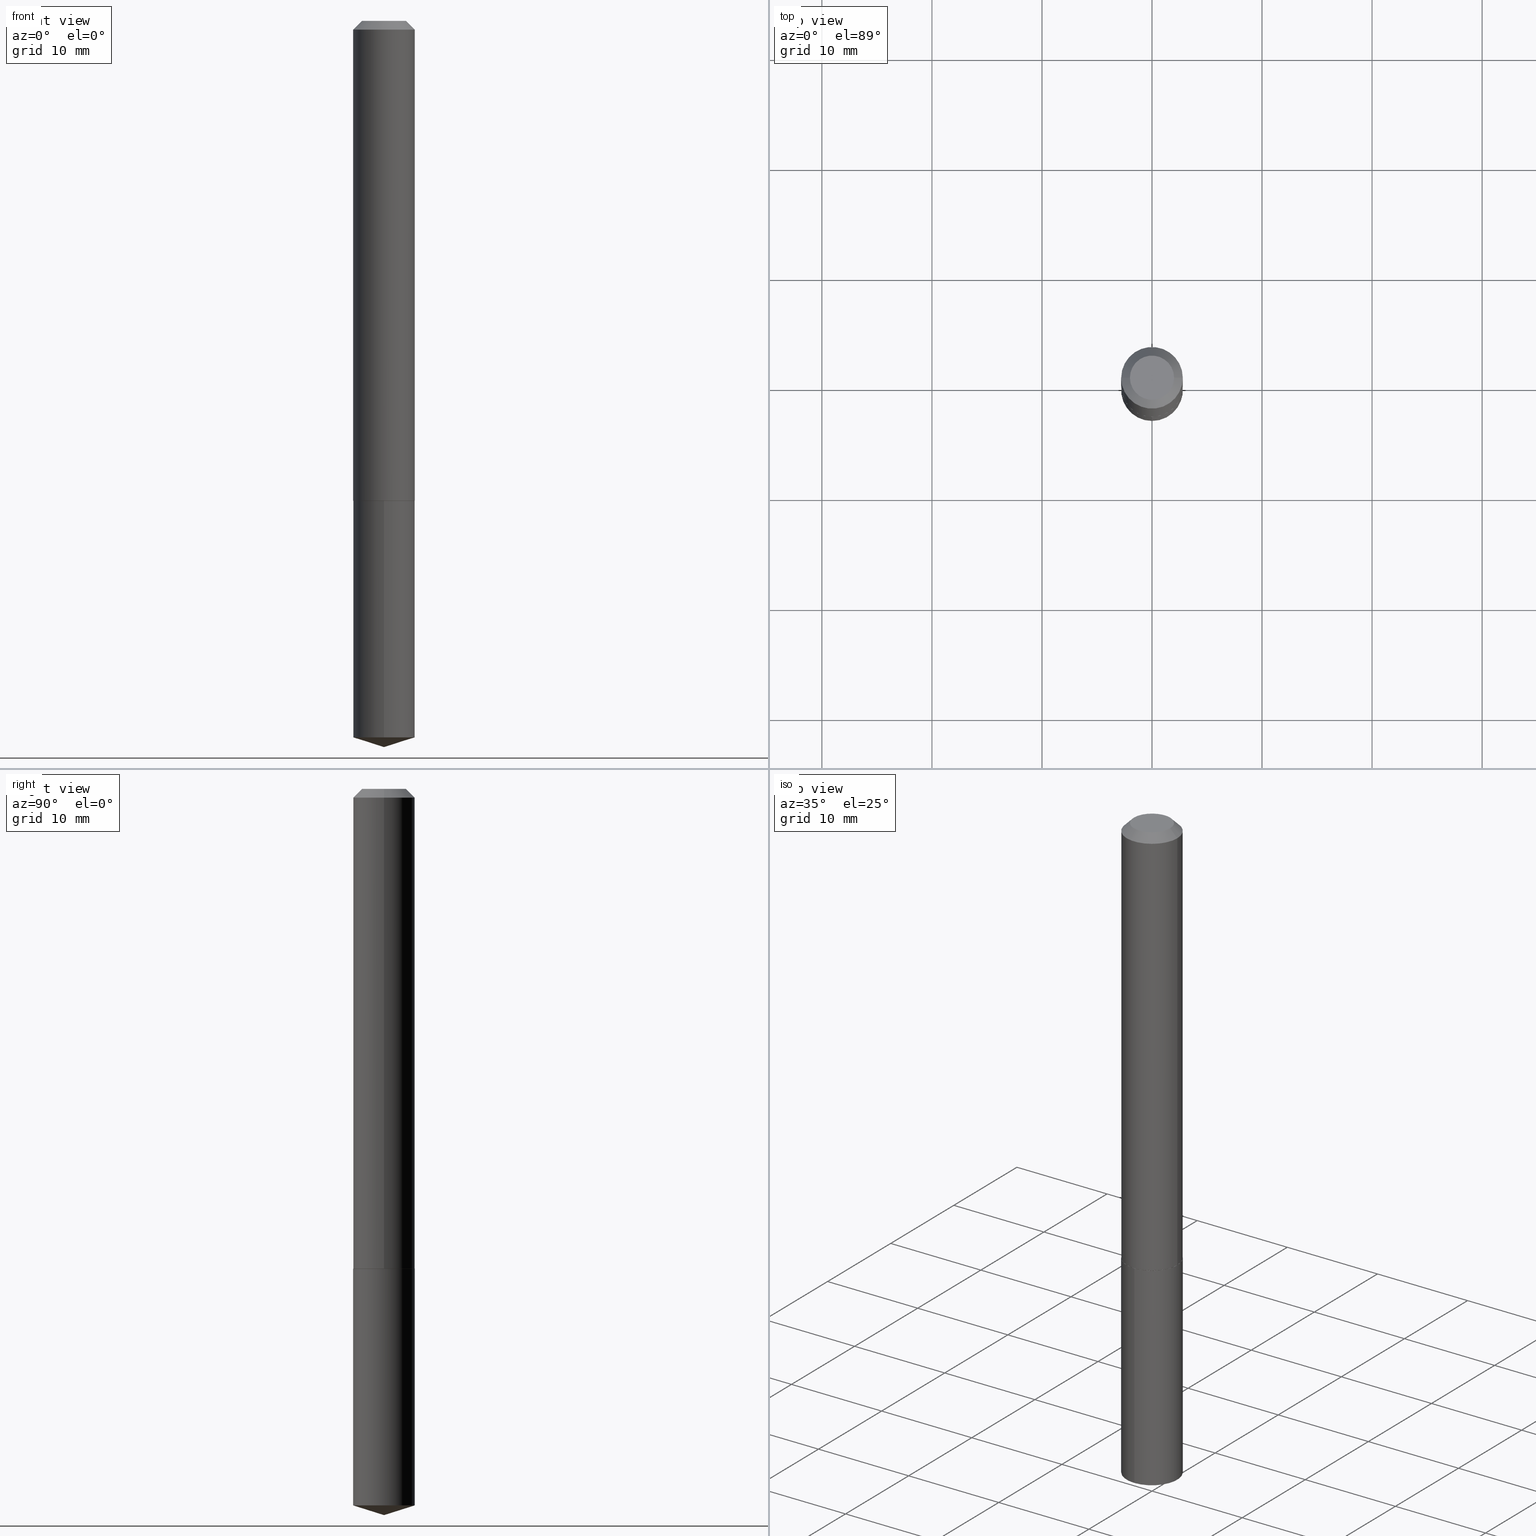
[diagram: canonical four-view strip — front | top / right | iso, engineering-drawing reading convention]
A machine part, canonical four-view strip (front | top / right | iso — engineering-drawing reading convention). The complete STEP part file that produces these views, byte-faithful:
ISO-10303-21;
HEADER;
FILE_DESCRIPTION (( 'STEP AP203' ),
    '1' );
FILE_NAME ('62123.STEP',
    '2024-04-23T06:21:01',
    ( '' ),
    ( '' ),
    'SwSTEP 2.0',
    'SolidWorks 2023',
    '' );
FILE_SCHEMA (( 'CONFIG_CONTROL_DESIGN' ));
ENDSEC;

DATA;
#1 = AXIS2_PLACEMENT_3D ( 'NONE', #357, #51, #261 ) ;
#2 = ORIENTED_EDGE ( 'NONE', *, *, #131, .F. ) ;
#3 = FACE_OUTER_BOUND ( 'NONE', #296, .T. ) ;
#4 = CC_DESIGN_DATE_AND_TIME_ASSIGNMENT ( #192, #315, ( #234 ) ) ;
#5 = APPROVAL_DATE_TIME ( #161, #202 ) ;
#6 = CARTESIAN_POINT ( 'NONE',  ( 6.354085478597947084E-29, -9.072581119117144930E-15, -2.598399999999999821 ) ) ;
#7 = APPROVAL_ROLE ( '' ) ;
#8 = LOCAL_TIME ( 2, 21, 1.000000000000000000, #282 ) ;
#9 = PERSON_AND_ORGANIZATION_ROLE ( 'design_supplier' ) ;
#10 = CC_DESIGN_PERSON_AND_ORGANIZATION_ASSIGNMENT ( #70, #312, ( #281 ) ) ;
#11 = AXIS2_PLACEMENT_3D ( 'NONE', #168, #157, #288 ) ;
#12 = DIRECTION ( 'NONE',  ( 1.000000000000000000, -6.982962677686265133E-15, 0.000000000000000000 ) ) ;
#13 = CIRCLE ( 'NONE', #72, 0.1102500000000000008 ) ;
#14 = FACE_OUTER_BOUND ( 'NONE', #241, .T. ) ;
#15 = LINE ( 'NONE', #204, #364 ) ;
#16 = EDGE_CURVE ( 'NONE', #237, #33, #193, .T. ) ;
#17 = DIRECTION ( 'NONE',  ( -2.445383881849579817E-29, 3.491602955325256066E-15, 1.000000000000000000 ) ) ;
#18 = LINE ( 'NONE', #295, #43 ) ;
#19 = CARTESIAN_POINT ( 'NONE',  ( 4.197647205816786480E-29, -5.993127718124259199E-15, -1.716499999999999915 ) ) ;
#20 = DIRECTION ( 'NONE',  ( 0.7071067811865452413, -7.319954787623248157E-15, -0.7071067811865497932 ) ) ;
#21 = AXIS2_PLACEMENT_3D ( 'NONE', #19, #17, #133 ) ;
#22 = DIRECTION ( 'NONE',  ( 1.000000000000000000, -6.982962677686266711E-15, 4.876184424155355806E-29 ) ) ;
#23 = ORIENTED_EDGE ( 'NONE', *, *, #81, .T. ) ;
#24 = DIRECTION ( 'NONE',  ( -2.445383881849579817E-29, 3.491602955325256066E-15, 1.000000000000000000 ) ) ;
#25 = EDGE_CURVE ( 'NONE', #80, #269, #97, .T. ) ;
#26 = ORIENTED_EDGE ( 'NONE', *, *, #131, .T. ) ;
#27 = VERTEX_POINT ( 'NONE', #6 ) ;
#28 = DATE_AND_TIME ( #301, #117 ) ;
#29 = ORIENTED_EDGE ( 'NONE', *, *, #264, .F. ) ;
#30 = APPLICATION_PROTOCOL_DEFINITION ( 'international standard', 'config_control_design', 1994, #383 ) ;
#31 = ADVANCED_FACE ( 'NONE', ( #69 ), #165, .T. ) ;
#32 = DIMENSIONAL_EXPONENTS ( 1.000000000000000000, 0.000000000000000000, 0.000000000000000000, 0.000000000000000000, 0.000000000000000000, 0.000000000000000000, 0.000000000000000000 ) ;
#33 = VERTEX_POINT ( 'NONE', #130 ) ;
#34 = AXIS2_PLACEMENT_3D ( 'NONE', #335, #150, #61 ) ;
#35 = DIRECTION ( 'NONE',  ( -2.445383881849579817E-29, 3.491602955325256066E-15, 1.000000000000000000 ) ) ;
#36 = FACE_OUTER_BOUND ( 'NONE', #272, .T. ) ;
#37 = APPROVAL ( #56, 'UNSPECIFIED' ) ;
#38 = PERSON_AND_ORGANIZATION_ROLE ( 'classification_officer' ) ;
#39 = CARTESIAN_POINT ( 'NONE',  ( 0.1102500000000002089, -6.761253612669749957E-15, -1.715999999999999970 ) ) ;
#40 = VECTOR ( 'NONE', #35, 39.37007874015748143 ) ;
#41 = DATE_AND_TIME ( #68, #8 ) ;
#42 = DIRECTION ( 'NONE',  ( 2.438088387897960049E-29, -3.491481338843145188E-15, -1.000000000000000000 ) ) ;
#43 = VECTOR ( 'NONE', #384, 39.37007874015748143 ) ;
#44 = ADVANCED_FACE ( 'NONE', ( #3 ), #273, .T. ) ;
#45 = DIRECTION ( 'NONE',  ( -6.659769872151619467E-15, -0.9537169507482249342, 0.3007057995042790588 ) ) ;
#46 = CARTESIAN_POINT ( 'NONE',  ( 7.833733661755731749E-16, 0.1102499999999940195, -1.716500000000000137 ) ) ;
#47 = FACE_OUTER_BOUND ( 'NONE', #148, .T. ) ;
#48 = DIRECTION ( 'NONE',  ( 1.000000000000000000, -6.982962677686265133E-15, 0.000000000000000000 ) ) ;
#49 = CONICAL_SURFACE ( 'NONE', #98, 0.1102500000000000008, 0.7853981633974450594 ) ;
#50 = ORIENTED_EDGE ( 'NONE', *, *, #86, .T. ) ;
#51 = DIRECTION ( 'NONE',  ( 2.445383881849579257E-29, -3.491602955325256066E-15, -1.000000000000000000 ) ) ;
#52 = EDGE_CURVE ( 'NONE', #176, #142, #334, .T. ) ;
#53 = EDGE_LOOP ( 'NONE', ( #84, #215 ) ) ;
#54 = APPLICATION_PROTOCOL_DEFINITION ( 'international standard', 'config_control_design', 1994, #304 ) ;
#55 = ORIENTED_EDGE ( 'NONE', *, *, #25, .T. ) ;
#56 = APPROVAL_STATUS ( 'not_yet_approved' ) ;
#57 = VECTOR ( 'NONE', #325, 39.37007874015748854 ) ;
#58 = LOCAL_TIME ( 2, 21, 1.000000000000000000, #252 ) ;
#59 = ORIENTED_EDGE ( 'NONE', *, *, #121, .T. ) ;
#60 = APPROVAL_PERSON_ORGANIZATION ( #310, #210, #156 ) ;
#61 = DIRECTION ( 'NONE',  ( 1.000000000000000000, 0.000000000000000000, 0.000000000000000000 ) ) ;
#62 = DIRECTION ( 'NONE',  ( -2.445468806185136597E-29, 3.491481338843145583E-15, 1.000000000000000000 ) ) ;
#63 = PERSON_AND_ORGANIZATION ( #260, #126 ) ;
#64 = LINE ( 'NONE', #309, #316 ) ;
#65 = AXIS2_PLACEMENT_3D ( 'NONE', #201, #263, #48 ) ;
#66 = PERSON_AND_ORGANIZATION ( #260, #126 ) ;
#67 = DIRECTION ( 'NONE',  ( 0.7071067811864026886, -2.468850131080739687E-15, 0.7071067811866923458 ) ) ;
#68 = CALENDAR_DATE ( 2024, 23, 4 ) ;
#69 = FACE_OUTER_BOUND ( 'NONE', #298, .T. ) ;
#70 = PERSON_AND_ORGANIZATION ( #260, #126 ) ;
#71 = AXIS2_PLACEMENT_3D ( 'NONE', #336, #163, #89 ) ;
#72 = AXIS2_PLACEMENT_3D ( 'NONE', #162, #255, #314 ) ;
#73 = CARTESIAN_POINT ( 'NONE',  ( -5.989671091818699506E-48, 8.551662891794013634E-34, 2.449293598294725547E-19 ) ) ;
#74 = DIRECTION ( 'NONE',  ( -2.445468806185136877E-29, 3.491481338843145188E-15, 1.000000000000000000 ) ) ;
#75 = CARTESIAN_POINT ( 'NONE',  ( -0.1102500000000001118, 7.833733661755112493E-16, -5.423125937006039074E-30 ) ) ;
#76 = VECTOR ( 'NONE', #322, 39.37007874015748143 ) ;
#77 = CYLINDRICAL_SURFACE ( 'NONE', #110, 0.1102500000000000008 ) ;
#78 = LINE ( 'NONE', #132, #244 ) ;
#79 = FACE_OUTER_BOUND ( 'NONE', #248, .T. ) ;
#80 = VERTEX_POINT ( 'NONE', #99 ) ;
#81 = EDGE_CURVE ( 'NONE', #269, #356, #188, .T. ) ;
#82 = CARTESIAN_POINT ( 'NONE',  ( 7.642090019328603538E-31, -1.091087918388490390E-16, -0.03125000000000021511 ) ) ;
#83 = VERTEX_POINT ( 'NONE', #246 ) ;
#84 = ORIENTED_EDGE ( 'NONE', *, *, #86, .F. ) ;
#85 = FACE_OUTER_BOUND ( 'NONE', #146, .T. ) ;
#86 = EDGE_CURVE ( 'NONE', #237, #305, #319, .T. ) ;
#87 = ORIENTED_EDGE ( 'NONE', *, *, #52, .F. ) ;
#88 =( LENGTH_UNIT ( ) NAMED_UNIT ( * ) SI_UNIT ( $, .METRE. ) );
#89 = DIRECTION ( 'NONE',  ( -6.982962677686266711E-15, -1.000000000000000000, 4.955733321839933614E-15 ) ) ;
#90 = PERSON_AND_ORGANIZATION ( #260, #126 ) ;
#91 = SHAPE_DEFINITION_REPRESENTATION ( #197, #229 ) ;
#92 = EDGE_CURVE ( 'NONE', #142, #95, #64, .T. ) ;
#93 = DIRECTION ( 'NONE',  ( 1.000000000000000000, -6.982962677686266711E-15, 4.876184424155355806E-29 ) ) ;
#94 = CONICAL_SURFACE ( 'NONE', #65, 0.1102500000000002089, 0.7853981633972434429 ) ;
#95 = VERTEX_POINT ( 'NONE', #198 ) ;
#96 = ADVANCED_FACE ( 'NONE', ( #318 ), #155, .F. ) ;
#97 = CIRCLE ( 'NONE', #71, 0.1102500000000000008 ) ;
#98 = AXIS2_PLACEMENT_3D ( 'NONE', #82, #323, #231 ) ;
#99 = CARTESIAN_POINT ( 'NONE',  ( -7.698716352148479695E-16, -0.1102500000000089381, -2.563638308526090981 ) ) ;
#100 = LINE ( 'NONE', #230, #200 ) ;
#101 = CYLINDRICAL_SURFACE ( 'NONE', #224, 0.1102500000000001118 ) ;
#102 = CC_DESIGN_APPROVAL ( #210, ( #234 ) ) ;
#103 = CARTESIAN_POINT ( 'NONE',  ( -0.1097500000000005138, -5.210657838453436365E-15, -1.716499999999999915 ) ) ;
#104 = CARTESIAN_POINT ( 'NONE',  ( 4.197647205816786480E-29, -5.993127718124259199E-15, -1.716499999999999915 ) ) ;
#105 = CARTESIAN_POINT ( 'NONE',  ( 0.1097500000000005138, -6.759507872000330031E-15, -1.716499999999999915 ) ) ;
#106 = PRODUCT_RELATED_PRODUCT_CATEGORY ( 'detail', '', ( #129 ) ) ;
#107 = FACE_OUTER_BOUND ( 'NONE', #53, .T. ) ;
#108 = CARTESIAN_POINT ( 'NONE',  ( 6.354379580349561740E-29, -9.072163609734060418E-15, -2.598399999999999821 ) ) ;
#109 = ORIENTED_EDGE ( 'NONE', *, *, #16, .T. ) ;
#110 = AXIS2_PLACEMENT_3D ( 'NONE', #262, #294, #382 ) ;
#111 = ORIENTED_EDGE ( 'NONE', *, *, #81, .F. ) ;
#112 = LENGTH_MEASURE_WITH_UNIT ( LENGTH_MEASURE( 0.02539999999999999897 ), #88 );
#113 = ADVANCED_FACE ( 'NONE', ( #36 ), #187, .T. ) ;
#114 = ORIENTED_EDGE ( 'NONE', *, *, #277, .T. ) ;
#115 = ORIENTED_EDGE ( 'NONE', *, *, #375, .T. ) ;
#116 =( CONVERSION_BASED_UNIT ( 'INCH', #112 ) LENGTH_UNIT ( ) NAMED_UNIT ( #32 ) );
#117 = LOCAL_TIME ( 2, 21, 1.000000000000000000, #387 ) ;
#118 = DIRECTION ( 'NONE',  ( 1.000000000000000000, -6.982962677686267499E-15, 0.000000000000000000 ) ) ;
#119 = MECHANICAL_CONTEXT ( 'NONE', #383, 'mechanical' ) ;
#120 = ORIENTED_EDGE ( 'NONE', *, *, #185, .F. ) ;
#121 = EDGE_CURVE ( 'NONE', #305, #237, #240, .T. ) ;
#122 = DIRECTION ( 'NONE',  ( -1.000000000000000000, 6.982962677686265922E-15, -4.876176775795935793E-29 ) ) ;
#123 = COORDINATED_UNIVERSAL_TIME_OFFSET ( 5, 0, .BEHIND. ) ;
#124 = ORIENTED_EDGE ( 'NONE', *, *, #300, .F. ) ;
#125 = CIRCLE ( 'NONE', #348, 0.1102500000000002089 ) ;
#126 = ORGANIZATION ( 'UNSPECIFIED', 'UNSPECIFIED', '' ) ;
#127 = CALENDAR_DATE ( 2024, 23, 4 ) ;
#128 = APPROVAL_STATUS ( 'not_yet_approved' ) ;
#129 = PRODUCT ( '62123', '62123', '', ( #119 ) ) ;
#130 = CARTESIAN_POINT ( 'NONE',  ( 0.1102500000000002089, -6.761253612669749957E-15, -1.715999999999999970 ) ) ;
#131 = EDGE_CURVE ( 'NONE', #83, #33, #285, .T. ) ;
#132 = CARTESIAN_POINT ( 'NONE',  ( 0.1102500000000000008, -8.654786960931604025E-16, -0.03125000000000021511 ) ) ;
#133 = DIRECTION ( 'NONE',  ( -6.982962677686266711E-15, -1.000000000000000000, 2.477866660919966807E-15 ) ) ;
#134 = FACE_OUTER_BOUND ( 'NONE', #303, .T. ) ;
#135 = AXIS2_PLACEMENT_3D ( 'NONE', #276, #42, #122 ) ;
#136 = CIRCLE ( 'NONE', #286, 0.1102500000000000008 ) ;
#137 = DIRECTION ( 'NONE',  ( 1.000000000000000000, -6.982962677686265133E-15, 0.000000000000000000 ) ) ;
#138 = CC_DESIGN_PERSON_AND_ORGANIZATION_ASSIGNMENT ( #343, #38, ( #234 ) ) ;
#139 = CARTESIAN_POINT ( 'NONE',  ( -0.07900000000000000078, 6.062084474566384135E-16, 2.449293598254241055E-19 ) ) ;
#140 = ORIENTED_EDGE ( 'NONE', *, *, #158, .F. ) ;
#141 = DIRECTION ( 'NONE',  ( -6.982962677686266711E-15, -1.000000000000000000, 4.955733321839933614E-15 ) ) ;
#142 = VERTEX_POINT ( 'NONE', #139 ) ;
#143 =( NAMED_UNIT ( * ) SI_UNIT ( $, .STERADIAN. ) SOLID_ANGLE_UNIT ( ) );
#144 = AXIS2_PLACEMENT_3D ( 'NONE', #245, #62, #186 ) ;
#145 = AXIS2_PLACEMENT_3D ( 'NONE', #194, #342, #160 ) ;
#146 = EDGE_LOOP ( 'NONE', ( #124, #26, #313, #242 ) ) ;
#147 = APPROVAL_DATE_TIME ( #28, #37 ) ;
#148 = EDGE_LOOP ( 'NONE', ( #183, #59, #109, #2 ) ) ;
#149 = ORIENTED_EDGE ( 'NONE', *, *, #185, .T. ) ;
#150 = DIRECTION ( 'NONE',  ( 0.000000000000000000, 0.000000000000000000, 1.000000000000000000 ) ) ;
#151 = EDGE_CURVE ( 'NONE', #33, #83, #125, .T. ) ;
#152 = AXIS2_PLACEMENT_3D ( 'NONE', #73, #376, #93 ) ;
#153 = CIRCLE ( 'NONE', #320, 0.07900000000000000078 ) ;
#154 = DIRECTION ( 'NONE',  ( 1.000000000000000000, -6.982962677686267499E-15, 0.000000000000000000 ) ) ;
#155 = PLANE ( 'NONE',  #135 ) ;
#156 = APPROVAL_ROLE ( '' ) ;
#157 = DIRECTION ( 'NONE',  ( -2.445383881849579817E-29, 3.491602955325256066E-15, 1.000000000000000000 ) ) ;
#158 = EDGE_CURVE ( 'NONE', #27, #269, #235, .T. ) ;
#159 = PERSON_AND_ORGANIZATION_ROLE ( 'creator' ) ;
#160 = DIRECTION ( 'NONE',  ( 1.000000000000000000, -6.982962677686266711E-15, 0.000000000000000000 ) ) ;
#161 = DATE_AND_TIME ( #127, #219 ) ;
#162 = CARTESIAN_POINT ( 'NONE',  ( 4.197647205816786480E-29, -5.993127718124259199E-15, -1.716499999999999915 ) ) ;
#163 = DIRECTION ( 'NONE',  ( -2.445383881849579817E-29, 3.491602955325256066E-15, 1.000000000000000000 ) ) ;
#164 = ADVANCED_FACE ( 'NONE', ( #79 ), #101, .T. ) ;
#165 = CONICAL_SURFACE ( 'NONE', #326, 0.1102500000000002089, 0.7853981633972434429 ) ;
#166 = CC_DESIGN_APPROVAL ( #37, ( #270 ) ) ;
#167 = DIRECTION ( 'NONE',  ( -6.982962677686265133E-15, -1.000000000000000000, 3.500519750498771880E-15 ) ) ;
#168 = CARTESIAN_POINT ( 'NONE',  ( -8.992072472710999057E-28, 1.283923109160962900E-13, 36.77167874015748339 ) ) ;
#169 = CARTESIAN_POINT ( 'NONE',  ( 0.000000000000000000, 0.000000000000000000, 0.000000000000000000 ) ) ;
#170 = ADVANCED_FACE ( 'NONE', ( #47 ), #94, .T. ) ;
#171 = DIRECTION ( 'NONE',  ( -2.438088387897960049E-29, 3.491481338843145188E-15, 1.000000000000000000 ) ) ;
#172 = CARTESIAN_POINT ( 'NONE',  ( 4.196424471413694799E-29, -5.991381977454837695E-15, -1.715999999999999970 ) ) ;
#173 = AXIS2_PLACEMENT_3D ( 'NONE', #278, #217, #118 ) ;
#174 = APPROVAL_PERSON_ORGANIZATION ( #189, #202, #7 ) ;
#175 = CARTESIAN_POINT ( 'NONE',  ( 0.07900000000000000078, -7.037290189585556716E-16, 2.449293598338615083E-19 ) ) ;
#176 = VERTEX_POINT ( 'NONE', #175 ) ;
#177 = CARTESIAN_POINT ( 'NONE',  ( -5.989671091818699506E-48, 8.551662891794013634E-34, 2.449293598294725547E-19 ) ) ;
#178 = ORIENTED_EDGE ( 'NONE', *, *, #232, .T. ) ;
#179 = APPROVAL_ROLE ( '' ) ;
#180 = EDGE_CURVE ( 'NONE', #95, #386, #136, .T. ) ;
#181 = ORIENTED_EDGE ( 'NONE', *, *, #308, .F. ) ;
#182 = AXIS2_PLACEMENT_3D ( 'NONE', #289, #171, #291 ) ;
#183 = ORIENTED_EDGE ( 'NONE', *, *, #283, .F. ) ;
#184 = CARTESIAN_POINT ( 'NONE',  ( 0.1102500000000000008, -8.789804270537599818E-16, -0.03125000000000021511 ) ) ;
#185 = EDGE_CURVE ( 'NONE', #27, #80, #297, .T. ) ;
#186 = DIRECTION ( 'NONE',  ( 1.000000000000000000, -6.982962677686265133E-15, 0.000000000000000000 ) ) ;
#187 = CONICAL_SURFACE ( 'NONE', #11, 124.8659371009126602, 1.265363707695886131 ) ;
#188 = LINE ( 'NONE', #191, #40 ) ;
#189 = PERSON_AND_ORGANIZATION ( #260, #126 ) ;
#190 = ADVANCED_FACE ( 'NONE', ( #329 ), #292, .F. ) ;
#191 = CARTESIAN_POINT ( 'NONE',  ( 7.833733661755523687E-16, 0.1102499999999940195, -1.716500000000000137 ) ) ;
#192 = DATE_AND_TIME ( #247, #254 ) ;
#193 = LINE ( 'NONE', #39, #243 ) ;
#194 = CARTESIAN_POINT ( 'NONE',  ( 7.642090019328603538E-31, -1.091087918388490390E-16, -0.03125000000000021511 ) ) ;
#195 = SECURITY_CLASSIFICATION_LEVEL ( 'unclassified' ) ;
#196 = CC_DESIGN_PERSON_AND_ORGANIZATION_ASSIGNMENT ( #66, #159, ( #270 ) ) ;
#197 = PRODUCT_DEFINITION_SHAPE ( 'NONE', 'NONE',  #270 ) ;
#198 = CARTESIAN_POINT ( 'NONE',  ( -0.1102500000000000008, -2.266872018471330867E-15, -0.03125000000000021511 ) ) ;
#199 = AXIS2_PLACEMENT_3D ( 'NONE', #311, #228, #154 ) ;
#200 = VECTOR ( 'NONE', #74, 39.37007874015748143 ) ;
#201 = CARTESIAN_POINT ( 'NONE',  ( 4.196424471413694799E-29, -5.991381977454837695E-15, -1.715999999999999970 ) ) ;
#202 = APPROVAL ( #128, 'UNSPECIFIED' ) ;
#203 = DIRECTION ( 'NONE',  ( -2.445383881849579817E-29, 3.491602955325256066E-15, 1.000000000000000000 ) ) ;
#204 = CARTESIAN_POINT ( 'NONE',  ( -0.1102500000000002089, -5.208008611279325953E-15, -1.715999999999999970 ) ) ;
#205 = DIRECTION ( 'NONE',  ( -2.445468806185136597E-29, 3.491481338843145583E-15, 1.000000000000000000 ) ) ;
#206 = EDGE_LOOP ( 'NONE', ( #111, #114, #331, #302 ) ) ;
#207 = CC_DESIGN_APPROVAL ( #202, ( #281 ) ) ;
#208 = DIRECTION ( 'NONE',  ( -2.445468806185136597E-29, 3.491481338843145583E-15, 1.000000000000000000 ) ) ;
#209 = CYLINDRICAL_SURFACE ( 'NONE', #250, 0.1102500000000001118 ) ;
#210 = APPROVAL ( #279, 'UNSPECIFIED' ) ;
#211 = ORIENTED_EDGE ( 'NONE', *, *, #308, .T. ) ;
#212 =( NAMED_UNIT ( * ) PLANE_ANGLE_UNIT ( ) SI_UNIT ( $, .RADIAN. ) );
#213 = ORIENTED_EDGE ( 'NONE', *, *, #25, .F. ) ;
#214 = AXIS2_PLACEMENT_3D ( 'NONE', #104, #203, #287 ) ;
#215 = ORIENTED_EDGE ( 'NONE', *, *, #121, .F. ) ;
#216 = CC_DESIGN_PERSON_AND_ORGANIZATION_ASSIGNMENT ( #90, #332, ( #129 ) ) ;
#217 = DIRECTION ( 'NONE',  ( -2.445468806185136597E-29, 3.491481338843145583E-15, 1.000000000000000000 ) ) ;
#218 = EDGE_LOOP ( 'NONE', ( #371, #115 ) ) ;
#219 = LOCAL_TIME ( 2, 21, 1.000000000000000000, #369 ) ;
#220 = DIRECTION ( 'NONE',  ( -1.000000000000000000, 6.982962677686266711E-15, 0.000000000000000000 ) ) ;
#221 = ORIENTED_EDGE ( 'NONE', *, *, #180, .T. ) ;
#222 = DATE_AND_TIME ( #372, #58 ) ;
#223 = AXIS2_PLACEMENT_3D ( 'NONE', #339, #256, #220 ) ;
#224 = AXIS2_PLACEMENT_3D ( 'NONE', #169, #236, #355 ) ;
#225 = EDGE_CURVE ( 'NONE', #80, #251, #18, .T. ) ;
#226 = UNCERTAINTY_MEASURE_WITH_UNIT (LENGTH_MEASURE( 1.000000000000000082E-05 ), #116, 'distance_accuracy_value', 'NONE');
#227 = PLANE ( 'NONE',  #182 ) ;
#228 = DIRECTION ( 'NONE',  ( -2.445468806185136597E-29, 3.491481338843145583E-15, 1.000000000000000000 ) ) ;
#229 = ADVANCED_BREP_SHAPE_REPRESENTATION ( '62123', ( #253, #380, #34 ), #374 ) ;
#230 = CARTESIAN_POINT ( 'NONE',  ( 0.1102500000000001118, -7.698716352149116700E-16, 5.375984895315024509E-30 ) ) ;
#231 = DIRECTION ( 'NONE',  ( -1.000000000000000000, 6.982962677686266711E-15, 0.000000000000000000 ) ) ;
#232 = EDGE_CURVE ( 'NONE', #176, #386, #78, .T. ) ;
#233 = CLOSED_SHELL ( 'NONE', ( #330, #337, #113, #340, #190 ) ) ;
#234 = SECURITY_CLASSIFICATION ( '', '', #195 ) ;
#235 = LINE ( 'NONE', #108, #57 ) ;
#236 = DIRECTION ( 'NONE',  ( -2.445468806185136597E-29, 3.491481338843145583E-15, 1.000000000000000000 ) ) ;
#237 = VERTEX_POINT ( 'NONE', #105 ) ;
#238 = DIRECTION ( 'NONE',  ( 1.000000000000000000, -6.982962677686266711E-15, 0.000000000000000000 ) ) ;
#239 = ORIENTED_EDGE ( 'NONE', *, *, #151, .T. ) ;
#240 = CIRCLE ( 'NONE', #173, 0.1097500000000005138 ) ;
#241 = EDGE_LOOP ( 'NONE', ( #120, #362, #213 ) ) ;
#242 = ORIENTED_EDGE ( 'NONE', *, *, #180, .F. ) ;
#243 = VECTOR ( 'NONE', #67, 39.37007874015748143 ) ;
#244 = VECTOR ( 'NONE', #20, 39.37007874015748143 ) ;
#245 = CARTESIAN_POINT ( 'NONE',  ( 4.196424471413694799E-29, -5.991381977454837695E-15, -1.715999999999999970 ) ) ;
#246 = CARTESIAN_POINT ( 'NONE',  ( -0.1102500000000002089, -5.208008611279325953E-15, -1.715999999999999970 ) ) ;
#247 = CALENDAR_DATE ( 2024, 23, 4 ) ;
#248 = EDGE_LOOP ( 'NONE', ( #239, #359, #181, #385 ) ) ;
#249 = ADVANCED_FACE ( 'NONE', ( #134 ), #49, .T. ) ;
#250 = AXIS2_PLACEMENT_3D ( 'NONE', #299, #388, #365 ) ;
#251 = VERTEX_POINT ( 'NONE', #258 ) ;
#252 = COORDINATED_UNIVERSAL_TIME_OFFSET ( 5, 0, .BEHIND. ) ;
#253 = MANIFOLD_SOLID_BREP ( 'Body-Move/Copy2[1]', #233 ) ;
#254 = LOCAL_TIME ( 2, 21, 1.000000000000000000, #123 ) ;
#255 = DIRECTION ( 'NONE',  ( -2.445383881849579817E-29, 3.491602955325256066E-15, 1.000000000000000000 ) ) ;
#256 = DIRECTION ( 'NONE',  ( 2.445468806185136597E-29, -3.491481338843145583E-15, -1.000000000000000000 ) ) ;
#257 = DIRECTION ( 'NONE',  ( -2.445383881849579817E-29, 3.491602955325256066E-15, 1.000000000000000000 ) ) ;
#258 = CARTESIAN_POINT ( 'NONE',  ( -7.698716352148689729E-16, -0.1102500000000059960, -1.716499999999999471 ) ) ;
#259 = CARTESIAN_POINT ( 'NONE',  ( 7.833733661755730763E-16, 0.1102499999999910357, -2.563638308526091869 ) ) ;
#260 = PERSON ( 'UNSPECIFIED', 'UNSPECIFIED', 'UNSPECIFIED', ('UNSPECIFIED'), ('UNSPECIFIED'), ('UNSPECIFIED') ) ;
#261 = DIRECTION ( 'NONE',  ( 6.982962677686265922E-15, 1.000000000000000000, -3.491602955325256066E-15 ) ) ;
#262 = CARTESIAN_POINT ( 'NONE',  ( 4.197647205816786480E-29, -5.993127718124259199E-15, -1.716499999999999915 ) ) ;
#263 = DIRECTION ( 'NONE',  ( -2.445468806185136597E-29, 3.491481338843145583E-15, 1.000000000000000000 ) ) ;
#264 = EDGE_CURVE ( 'NONE', #142, #176, #153, .T. ) ;
#265 = ORIENTED_EDGE ( 'NONE', *, *, #264, .T. ) ;
#266 = ORIENTED_EDGE ( 'NONE', *, *, #225, .F. ) ;
#267 = PERSON_AND_ORGANIZATION ( #260, #126 ) ;
#268 = AXIS2_PLACEMENT_3D ( 'NONE', #379, #24, #141 ) ;
#269 = VERTEX_POINT ( 'NONE', #259 ) ;
#270 = PRODUCT_DEFINITION ( 'UNKNOWN', '', #281, #321 ) ;
#271 = ORIENTED_EDGE ( 'NONE', *, *, #324, .F. ) ;
#272 = EDGE_LOOP ( 'NONE', ( #140, #149, #275 ) ) ;
#273 = CONICAL_SURFACE ( 'NONE', #223, 0.1102500000000000008, 0.7853981633974450594 ) ;
#274 = CONICAL_SURFACE ( 'NONE', #328, 124.8659371009126602, 1.265363707695886131 ) ;
#275 = ORIENTED_EDGE ( 'NONE', *, *, #277, .F. ) ;
#276 = CARTESIAN_POINT ( 'NONE',  ( -2.994835545909349753E-48, 4.275831445897006817E-34, 1.224646799147362773E-19 ) ) ;
#277 = EDGE_CURVE ( 'NONE', #269, #80, #317, .T. ) ;
#278 = CARTESIAN_POINT ( 'NONE',  ( 4.197647205816786480E-29, -5.993127718124259199E-15, -1.716499999999999915 ) ) ;
#279 = APPROVAL_STATUS ( 'not_yet_approved' ) ;
#280 = VECTOR ( 'NONE', #45, 39.37007874015748854 ) ;
#281 = PRODUCT_DEFINITION_FORMATION_WITH_SPECIFIED_SOURCE ( 'ANY', '', #129, .NOT_KNOWN. ) ;
#282 = COORDINATED_UNIVERSAL_TIME_OFFSET ( 5, 0, .BEHIND. ) ;
#283 = EDGE_CURVE ( 'NONE', #305, #83, #15, .T. ) ;
#284 = CARTESIAN_POINT ( 'NONE',  ( 4.196424471413694799E-29, -5.991381977454837695E-15, -1.715999999999999970 ) ) ;
#285 = CIRCLE ( 'NONE', #144, 0.1102500000000002089 ) ;
#286 = AXIS2_PLACEMENT_3D ( 'NONE', #381, #351, #238 ) ;
#287 = DIRECTION ( 'NONE',  ( -6.982962677686266711E-15, -1.000000000000000000, 2.477866660919966807E-15 ) ) ;
#288 = DIRECTION ( 'NONE',  ( -6.982962677686265133E-15, -1.000000000000000000, 3.500519750498771880E-15 ) ) ;
#289 = CARTESIAN_POINT ( 'NONE',  ( 4.197647205816786480E-29, -5.993127718124259199E-15, -1.716499999999999915 ) ) ;
#290 = CARTESIAN_POINT ( 'NONE',  ( 6.354085478597947084E-29, -9.072581119117144930E-15, -2.598399999999999821 ) ) ;
#291 = DIRECTION ( 'NONE',  ( 1.000000000000000000, -6.982962677686265922E-15, 4.876176775795935793E-29 ) ) ;
#292 = PLANE ( 'NONE',  #1 ) ;
#293 = CIRCLE ( 'NONE', #21, 0.1102500000000000008 ) ;
#294 = DIRECTION ( 'NONE',  ( -2.445383881849579817E-29, 3.491602955325256066E-15, 1.000000000000000000 ) ) ;
#295 = CARTESIAN_POINT ( 'NONE',  ( -7.698716352148689729E-16, -0.1102500000000059960, -1.716499999999999471 ) ) ;
#296 = EDGE_LOOP ( 'NONE', ( #327, #29, #366, #221 ) ) ;
#297 = LINE ( 'NONE', #290, #280 ) ;
#298 = EDGE_LOOP ( 'NONE', ( #50, #363, #338, #368 ) ) ;
#299 = CARTESIAN_POINT ( 'NONE',  ( 0.000000000000000000, 0.000000000000000000, 0.000000000000000000 ) ) ;
#300 = EDGE_CURVE ( 'NONE', #83, #95, #347, .T. ) ;
#301 = CALENDAR_DATE ( 2024, 23, 4 ) ;
#302 = ORIENTED_EDGE ( 'NONE', *, *, #375, .F. ) ;
#303 = EDGE_LOOP ( 'NONE', ( #87, #178, #211, #360 ) ) ;
#304 = APPLICATION_CONTEXT ( 'configuration controlled 3d designs of mechanical parts and assemblies' ) ;
#305 = VERTEX_POINT ( 'NONE', #103 ) ;
#306 = DATE_TIME_ROLE ( 'creation_date' ) ;
#307 = CC_DESIGN_SECURITY_CLASSIFICATION ( #234, ( #281 ) ) ;
#308 = EDGE_CURVE ( 'NONE', #386, #95, #344, .T. ) ;
#309 = CARTESIAN_POINT ( 'NONE',  ( -0.1102500000000000008, 6.607628433760618791E-16, -0.03125000000000021511 ) ) ;
#310 = PERSON_AND_ORGANIZATION ( #260, #126 ) ;
#311 = CARTESIAN_POINT ( 'NONE',  ( 4.197647205816786480E-29, -5.993127718124259199E-15, -1.716499999999999915 ) ) ;
#312 = PERSON_AND_ORGANIZATION_ROLE ( 'creator' ) ;
#313 = ORIENTED_EDGE ( 'NONE', *, *, #353, .T. ) ;
#314 = DIRECTION ( 'NONE',  ( -6.982962677686266711E-15, -1.000000000000000000, 2.477866660919966807E-15 ) ) ;
#315 = DATE_TIME_ROLE ( 'classification_date' ) ;
#316 = VECTOR ( 'NONE', #346, 39.37007874015748143 ) ;
#317 = CIRCLE ( 'NONE', #268, 0.1102500000000000008 ) ;
#318 = FACE_OUTER_BOUND ( 'NONE', #370, .T. ) ;
#319 = CIRCLE ( 'NONE', #199, 0.1097500000000005138 ) ;
#320 = AXIS2_PLACEMENT_3D ( 'NONE', #177, #205, #22 ) ;
#321 = DESIGN_CONTEXT ( 'detailed design', #304, 'design' ) ;
#322 = DIRECTION ( 'NONE',  ( -2.445468806185136877E-29, 3.491481338843145188E-15, 1.000000000000000000 ) ) ;
#323 = DIRECTION ( 'NONE',  ( 2.445468806185136597E-29, -3.491481338843145583E-15, -1.000000000000000000 ) ) ;
#324 = EDGE_CURVE ( 'NONE', #251, #356, #13, .T. ) ;
#325 = DIRECTION ( 'NONE',  ( 6.776566513254244727E-15, 0.9537169507482271547, 0.3007057995042724530 ) ) ;
#326 = AXIS2_PLACEMENT_3D ( 'NONE', #284, #341, #12 ) ;
#327 = ORIENTED_EDGE ( 'NONE', *, *, #232, .F. ) ;
#328 = AXIS2_PLACEMENT_3D ( 'NONE', #354, #257, #167 ) ;
#329 = FACE_OUTER_BOUND ( 'NONE', #218, .T. ) ;
#330 = ADVANCED_FACE ( 'NONE', ( #352 ), #350, .T. ) ;
#331 = ORIENTED_EDGE ( 'NONE', *, *, #225, .T. ) ;
#332 = PERSON_AND_ORGANIZATION_ROLE ( 'design_owner' ) ;
#333 = EDGE_LOOP ( 'NONE', ( #55, #23, #271, #266 ) ) ;
#334 = CIRCLE ( 'NONE', #152, 0.07900000000000000078 ) ;
#335 = CARTESIAN_POINT ( 'NONE',  ( 0.000000000000000000, 0.000000000000000000, 0.000000000000000000 ) ) ;
#336 = CARTESIAN_POINT ( 'NONE',  ( 6.269225571183806449E-29, -8.950998339743198170E-15, -2.563638308526091425 ) ) ;
#337 = ADVANCED_FACE ( 'NONE', ( #14 ), #274, .T. ) ;
#338 = ORIENTED_EDGE ( 'NONE', *, *, #151, .F. ) ;
#339 = CARTESIAN_POINT ( 'NONE',  ( 7.642090019328603538E-31, -1.091087918388490390E-16, -0.03125000000000021511 ) ) ;
#340 = ADVANCED_FACE ( 'NONE', ( #377 ), #77, .T. ) ;
#341 = DIRECTION ( 'NONE',  ( -2.445468806185136597E-29, 3.491481338843145583E-15, 1.000000000000000000 ) ) ;
#342 = DIRECTION ( 'NONE',  ( -2.445468806185136597E-29, 3.491481338843145583E-15, 1.000000000000000000 ) ) ;
#343 = PERSON_AND_ORGANIZATION ( #260, #126 ) ;
#344 = CIRCLE ( 'NONE', #145, 0.1102500000000000008 ) ;
#345 = CC_DESIGN_PERSON_AND_ORGANIZATION_ASSIGNMENT ( #63, #9, ( #281 ) ) ;
#346 = DIRECTION ( 'NONE',  ( -0.7071067811865452413, 2.468850131082233000E-15, -0.7071067811865497932 ) ) ;
#347 = LINE ( 'NONE', #75, #76 ) ;
#348 = AXIS2_PLACEMENT_3D ( 'NONE', #172, #208, #137 ) ;
#349 = APPROVAL_PERSON_ORGANIZATION ( #267, #37, #179 ) ;
#350 = CYLINDRICAL_SURFACE ( 'NONE', #214, 0.1102500000000000008 ) ;
#351 = DIRECTION ( 'NONE',  ( -2.445468806185136597E-29, 3.491481338843145583E-15, 1.000000000000000000 ) ) ;
#352 = FACE_OUTER_BOUND ( 'NONE', #333, .T. ) ;
#353 = EDGE_CURVE ( 'NONE', #33, #386, #100, .T. ) ;
#354 = CARTESIAN_POINT ( 'NONE',  ( -8.992072472710999057E-28, 1.283923109160962900E-13, 36.77167874015748339 ) ) ;
#355 = DIRECTION ( 'NONE',  ( 1.000000000000000000, -6.982962677686266711E-15, 4.876176775795935793E-29 ) ) ;
#356 = VERTEX_POINT ( 'NONE', #46 ) ;
#357 = CARTESIAN_POINT ( 'NONE',  ( 4.197647205816786480E-29, -5.993127718124259199E-15, -1.716499999999999915 ) ) ;
#358 = CLOSED_SHELL ( 'NONE', ( #249, #164, #31, #367, #170, #389, #44, #96 ) ) ;
#359 = ORIENTED_EDGE ( 'NONE', *, *, #300, .T. ) ;
#360 = ORIENTED_EDGE ( 'NONE', *, *, #92, .F. ) ;
#361 = CC_DESIGN_DATE_AND_TIME_ASSIGNMENT ( #41, #306, ( #270 ) ) ;
#362 = ORIENTED_EDGE ( 'NONE', *, *, #158, .T. ) ;
#363 = ORIENTED_EDGE ( 'NONE', *, *, #283, .T. ) ;
#364 = VECTOR ( 'NONE', #378, 39.37007874015748143 ) ;
#365 = DIRECTION ( 'NONE',  ( 1.000000000000000000, -6.982962677686266711E-15, 4.876176775795935793E-29 ) ) ;
#366 = ORIENTED_EDGE ( 'NONE', *, *, #92, .T. ) ;
#367 = ADVANCED_FACE ( 'NONE', ( #107 ), #227, .F. ) ;
#368 = ORIENTED_EDGE ( 'NONE', *, *, #16, .F. ) ;
#369 = COORDINATED_UNIVERSAL_TIME_OFFSET ( 5, 0, .BEHIND. ) ;
#370 = EDGE_LOOP ( 'NONE', ( #265, #390 ) ) ;
#371 = ORIENTED_EDGE ( 'NONE', *, *, #324, .T. ) ;
#372 = CALENDAR_DATE ( 2024, 23, 4 ) ;
#373 = APPROVAL_DATE_TIME ( #222, #210 ) ;
#374 =( GEOMETRIC_REPRESENTATION_CONTEXT ( 3 ) GLOBAL_UNCERTAINTY_ASSIGNED_CONTEXT ( ( #226 ) ) GLOBAL_UNIT_ASSIGNED_CONTEXT ( ( #116, #212, #143 ) ) REPRESENTATION_CONTEXT ( 'NONE', 'WORKASPACE' ) );
#375 = EDGE_CURVE ( 'NONE', #356, #251, #293, .T. ) ;
#376 = DIRECTION ( 'NONE',  ( -2.445468806185136597E-29, 3.491481338843145583E-15, 1.000000000000000000 ) ) ;
#377 = FACE_OUTER_BOUND ( 'NONE', #206, .T. ) ;
#378 = DIRECTION ( 'NONE',  ( -0.7071067811864026886, 7.493145998869830357E-15, 0.7071067811866923458 ) ) ;
#379 = CARTESIAN_POINT ( 'NONE',  ( 6.269225571183806449E-29, -8.950998339743198170E-15, -2.563638308526091425 ) ) ;
#380 = MANIFOLD_SOLID_BREP ( 'Body-Move/Copy2[2]', #358 ) ;
#381 = CARTESIAN_POINT ( 'NONE',  ( 7.642090019328603538E-31, -1.091087918388490390E-16, -0.03125000000000021511 ) ) ;
#382 = DIRECTION ( 'NONE',  ( -6.982962677686266711E-15, -1.000000000000000000, 2.477866660919966807E-15 ) ) ;
#383 = APPLICATION_CONTEXT ( 'configuration controlled 3d designs of mechanical parts and assemblies' ) ;
#384 = DIRECTION ( 'NONE',  ( -2.445383881849579817E-29, 3.491602955325256066E-15, 1.000000000000000000 ) ) ;
#385 = ORIENTED_EDGE ( 'NONE', *, *, #353, .F. ) ;
#386 = VERTEX_POINT ( 'NONE', #184 ) ;
#387 = COORDINATED_UNIVERSAL_TIME_OFFSET ( 5, 0, .BEHIND. ) ;
#388 = DIRECTION ( 'NONE',  ( -2.445468806185136597E-29, 3.491481338843145583E-15, 1.000000000000000000 ) ) ;
#389 = ADVANCED_FACE ( 'NONE', ( #85 ), #209, .T. ) ;
#390 = ORIENTED_EDGE ( 'NONE', *, *, #52, .T. ) ;
ENDSEC;
END-ISO-10303-21;
